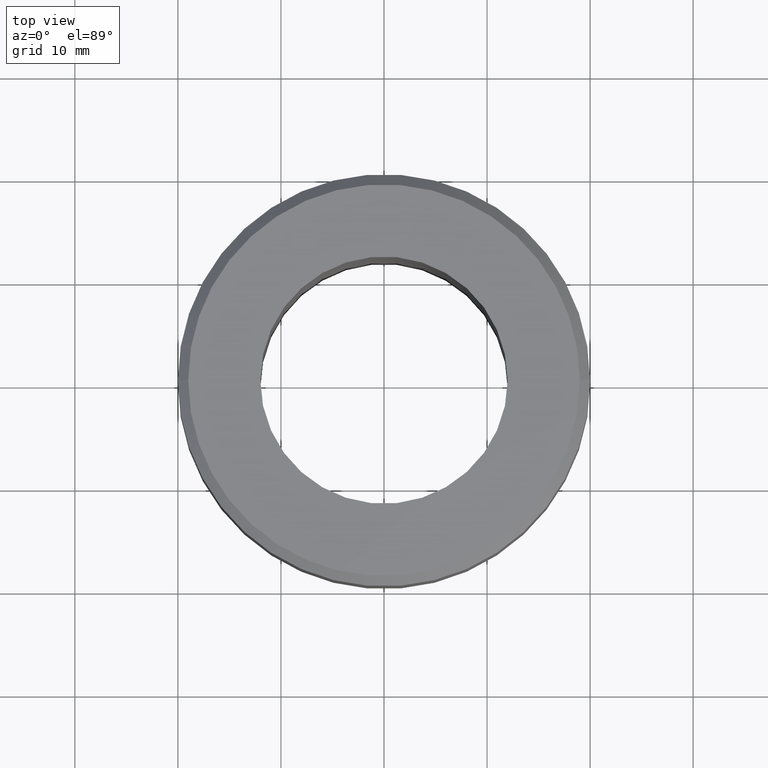
[diagram: clean part render]
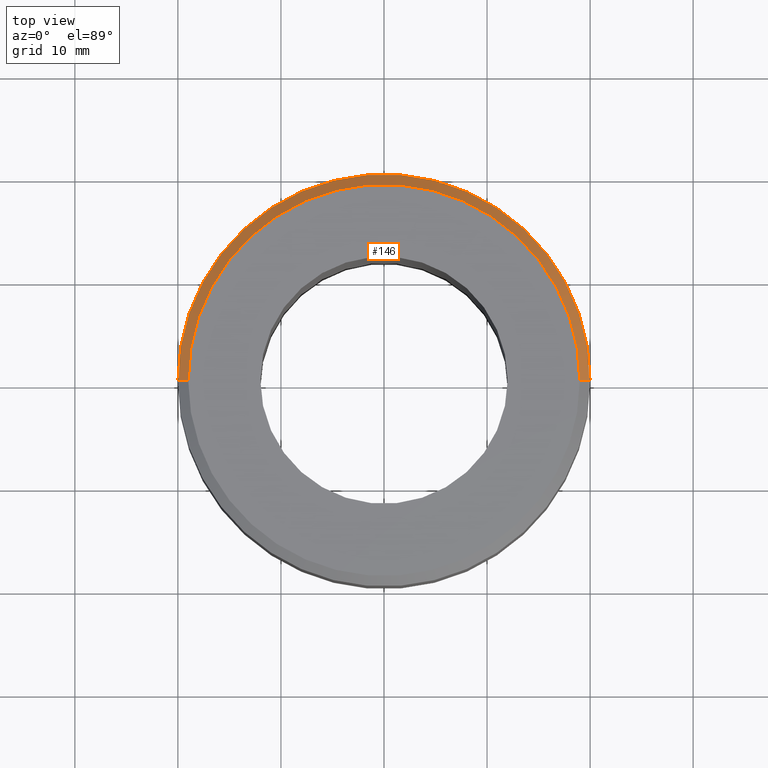
[diagram: same view with one face highlighted and labeled with its STEP entity id]
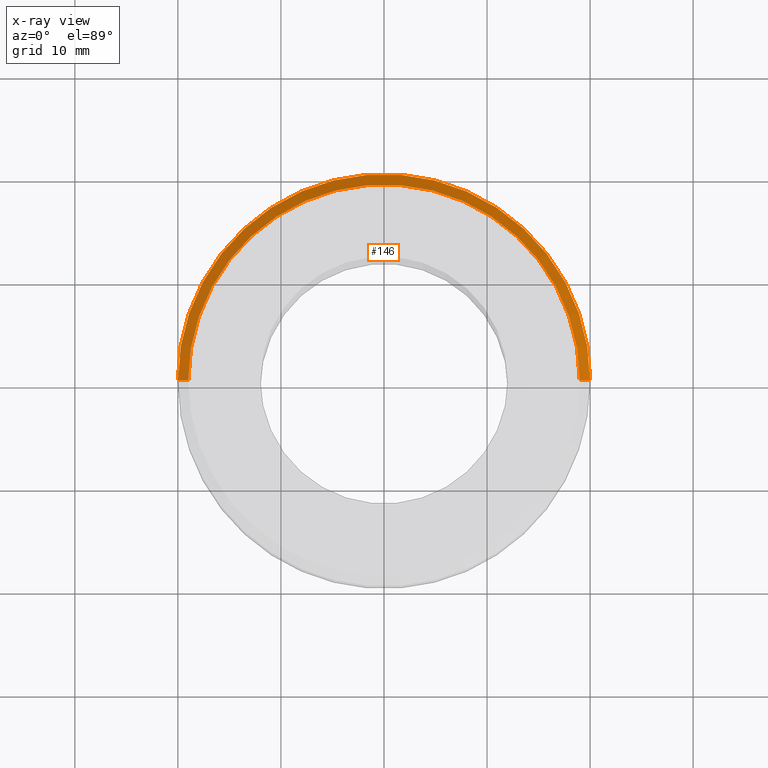
[diagram: x-ray of the same camera — body ghosted, the highlighted face saturated]
A machine part, top view. The second image highlights one B-rep face of the part: STEP entity #146.
The next image is the same camera in x-ray: the body ghosted, the highlighted face saturated — about 0% of this face is hidden behind the body in this view.
In plain terms, the highlighted conical surface has half-angle 45 deg.
Its self-contained STEP definition (entity closure, byte-faithful):
#9 = ORIENTED_EDGE ( 'NONE', *, *, #496, .F. ) ;
#19 = FACE_OUTER_BOUND ( 'NONE', #497, .T. ) ;
#24 = VERTEX_POINT ( 'NONE', #67 ) ;
#67 = CARTESIAN_POINT ( 'NONE',  ( 19.00000000000001066, 2.388061258337339728E-15, 0.000000000000000000 ) ) ;
#73 = ORIENTED_EDGE ( 'NONE', *, *, #442, .T. ) ;
#90 = CARTESIAN_POINT ( 'NONE',  ( 19.00000000000001066, 2.326828918379972548E-15, 0.000000000000000000 ) ) ;
#118 = VECTOR ( 'NONE', #387, 1000.000000000000114 ) ;
#127 = ORIENTED_EDGE ( 'NONE', *, *, #466, .F. ) ;
#134 = DIRECTION ( 'NONE',  ( 1.000000000000000000, 0.000000000000000000, 0.000000000000000000 ) ) ;
#143 = CONICAL_SURFACE ( 'NONE', #335, 19.00000000000001066, 0.7853981633974482790 ) ;
#146 = ADVANCED_FACE ( 'NONE', ( #19 ), #143, .T. ) ;
#171 = DIRECTION ( 'NONE',  ( 1.000000000000000000, 0.000000000000000000, 0.000000000000000000 ) ) ;
#172 = ORIENTED_EDGE ( 'NONE', *, *, #452, .F. ) ;
#175 = CIRCLE ( 'NONE', #491, 20.00000000000000000 ) ;
#184 = DIRECTION ( 'NONE',  ( 0.000000000000000000, 0.000000000000000000, -1.000000000000000000 ) ) ;
#185 = VECTOR ( 'NONE', #251, 1000.000000000000114 ) ;
#210 = CARTESIAN_POINT ( 'NONE',  ( 0.000000000000000000, 0.000000000000000000, 0.000000000000000000 ) ) ;
#212 = CARTESIAN_POINT ( 'NONE',  ( -20.00000000000000000, 2.449293598294706513E-15, -0.9999999999999904521 ) ) ;
#214 = CARTESIAN_POINT ( 'NONE',  ( -19.00000000000001066, 0.000000000000000000, 0.000000000000000000 ) ) ;
#251 = DIRECTION ( 'NONE',  ( 0.7071067811865474617, 8.659560562354932858E-17, -0.7071067811865474617 ) ) ;
#260 = AXIS2_PLACEMENT_3D ( 'NONE', #210, #380, #171 ) ;
#330 = LINE ( 'NONE', #90, #185 ) ;
#331 = VERTEX_POINT ( 'NONE', #410 ) ;
#333 = CARTESIAN_POINT ( 'NONE',  ( 0.000000000000000000, 0.000000000000000000, -0.9999999999999904521 ) ) ;
#335 = AXIS2_PLACEMENT_3D ( 'NONE', #350, #184, #514 ) ;
#350 = CARTESIAN_POINT ( 'NONE',  ( 0.000000000000000000, 0.000000000000000000, 0.000000000000000000 ) ) ;
#352 = VERTEX_POINT ( 'NONE', #530 ) ;
#380 = DIRECTION ( 'NONE',  ( -0.000000000000000000, -0.000000000000000000, 1.000000000000000000 ) ) ;
#387 = DIRECTION ( 'NONE',  ( -0.7071067811865474617, 0.000000000000000000, -0.7071067811865474617 ) ) ;
#394 = LINE ( 'NONE', #214, #118 ) ;
#410 = CARTESIAN_POINT ( 'NONE',  ( -19.00000000000001066, 0.000000000000000000, 0.000000000000000000 ) ) ;
#413 = VERTEX_POINT ( 'NONE', #212 ) ;
#442 = EDGE_CURVE ( 'NONE', #24, #352, #330, .T. ) ;
#447 = CIRCLE ( 'NONE', #260, 19.00000000000001066 ) ;
#452 = EDGE_CURVE ( 'NONE', #24, #331, #447, .T. ) ;
#466 = EDGE_CURVE ( 'NONE', #413, #352, #175, .T. ) ;
#491 = AXIS2_PLACEMENT_3D ( 'NONE', #333, #499, #134 ) ;
#496 = EDGE_CURVE ( 'NONE', #331, #413, #394, .T. ) ;
#497 = EDGE_LOOP ( 'NONE', ( #172, #73, #127, #9 ) ) ;
#499 = DIRECTION ( 'NONE',  ( 0.000000000000000000, 0.000000000000000000, -1.000000000000000000 ) ) ;
#514 = DIRECTION ( 'NONE',  ( -1.000000000000000000, 0.000000000000000000, 0.000000000000000000 ) ) ;
#530 = CARTESIAN_POINT ( 'NONE',  ( 20.00000000000000000, 0.000000000000000000, -0.9999999999999904521 ) ) ;